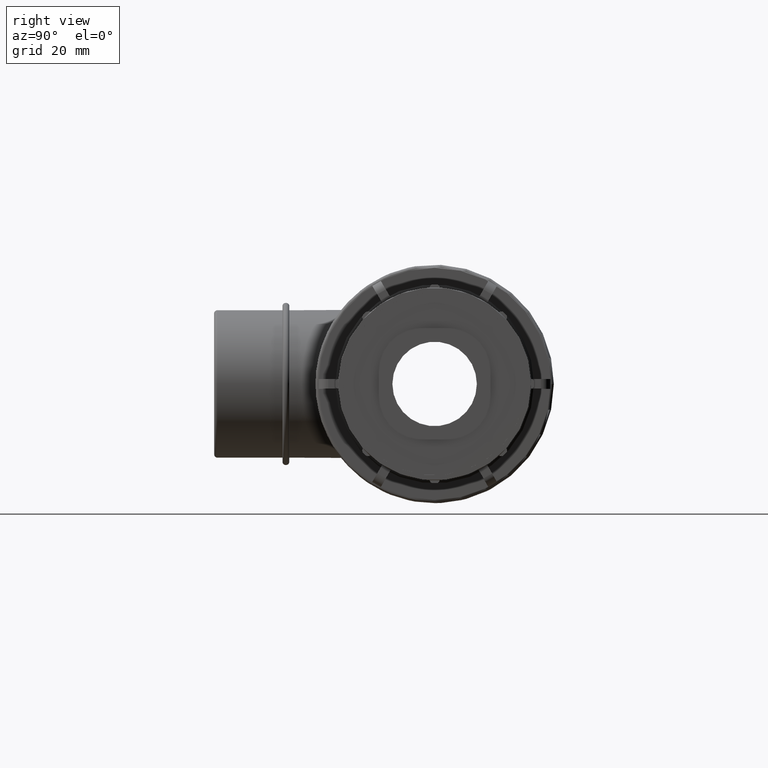
[diagram: clean part render]
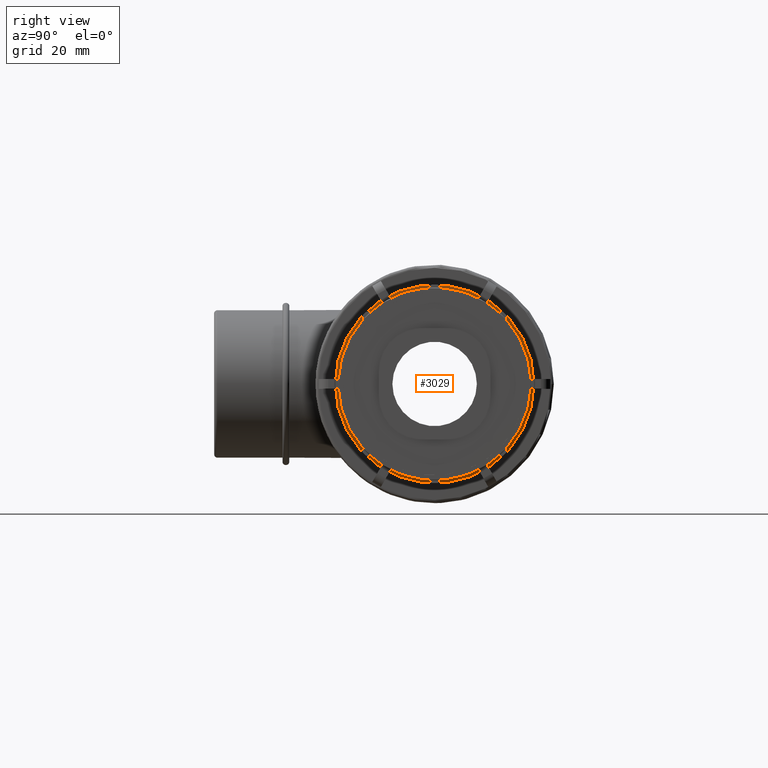
[diagram: same view with one face highlighted and labeled with its STEP entity id]
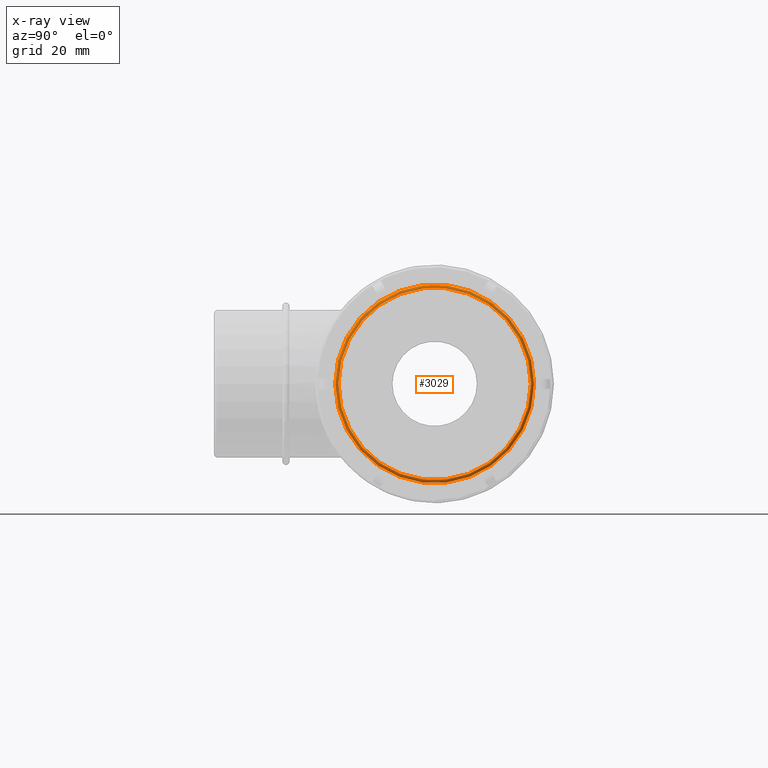
[diagram: x-ray of the same camera — body ghosted, the highlighted face saturated]
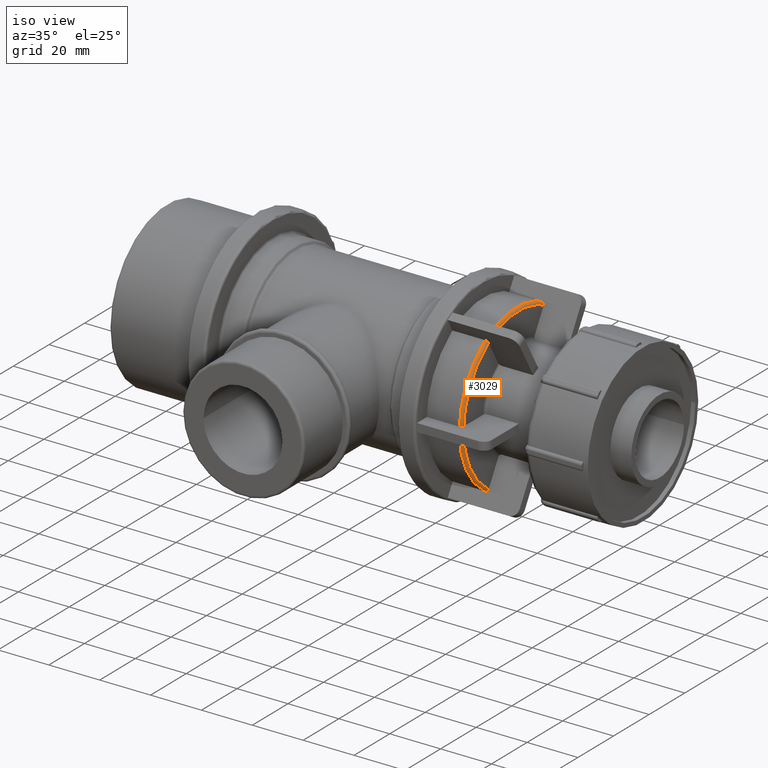
[diagram: same view with one face highlighted and labeled with its STEP entity id]
A machine part, right view. The second image highlights one B-rep face of the part: STEP entity #3029.
The next image is the same camera in x-ray: the body ghosted, the highlighted face saturated — about 22% of this face is hidden behind the body in this view.
A second angle (iso view) of the same face is appended — the face is thin or edge-on in the first view.
In plain terms, the highlighted toroidal blend (fillet) surface has major radius 31 mm and minor (blend) radius 1 mm.
Its self-contained STEP definition (entity closure, byte-faithful):
#535=CIRCLE('',#3275,32.);
#536=CIRCLE('',#3276,31.);
#725=TOROIDAL_SURFACE('',#3274,31.,1.);
#763=FACE_BOUND('',#1060,.T.);
#822=FACE_OUTER_BOUND('',#1059,.T.);
#1059=EDGE_LOOP('',(#2113));
#1060=EDGE_LOOP('',(#2114));
#1360=VERTEX_POINT('',#4740);
#1361=VERTEX_POINT('',#4742);
#1654=EDGE_CURVE('',#1360,#1360,#535,.T.);
#1655=EDGE_CURVE('',#1361,#1361,#536,.T.);
#2113=ORIENTED_EDGE('',*,*,#1654,.T.);
#2114=ORIENTED_EDGE('',*,*,#1655,.T.);
#3029=ADVANCED_FACE('',(#822,#763),#725,.T.);
#3274=AXIS2_PLACEMENT_3D('',#4739,#3706,#3707);
#3275=AXIS2_PLACEMENT_3D('',#4741,#3708,#3709);
#3276=AXIS2_PLACEMENT_3D('',#4743,#3710,#3711);
#3706=DIRECTION('center_axis',(1.,0.,0.));
#3707=DIRECTION('ref_axis',(0.,0.,-1.));
#3708=DIRECTION('center_axis',(1.,0.,0.));
#3709=DIRECTION('ref_axis',(0.,-1.,1.83697019872103E-16));
#3710=DIRECTION('center_axis',(-1.,0.,0.));
#3711=DIRECTION('ref_axis',(0.,-1.,1.83697019872103E-16));
#4739=CARTESIAN_POINT('Origin',(57.71,0.,0.));
#4740=CARTESIAN_POINT('',(57.71,32.,-1.95943487863576E-15));
#4741=CARTESIAN_POINT('Origin',(57.71,0.,0.));
#4742=CARTESIAN_POINT('',(58.71,31.,-9.49101269339199E-15));
#4743=CARTESIAN_POINT('Origin',(58.71,0.,0.));